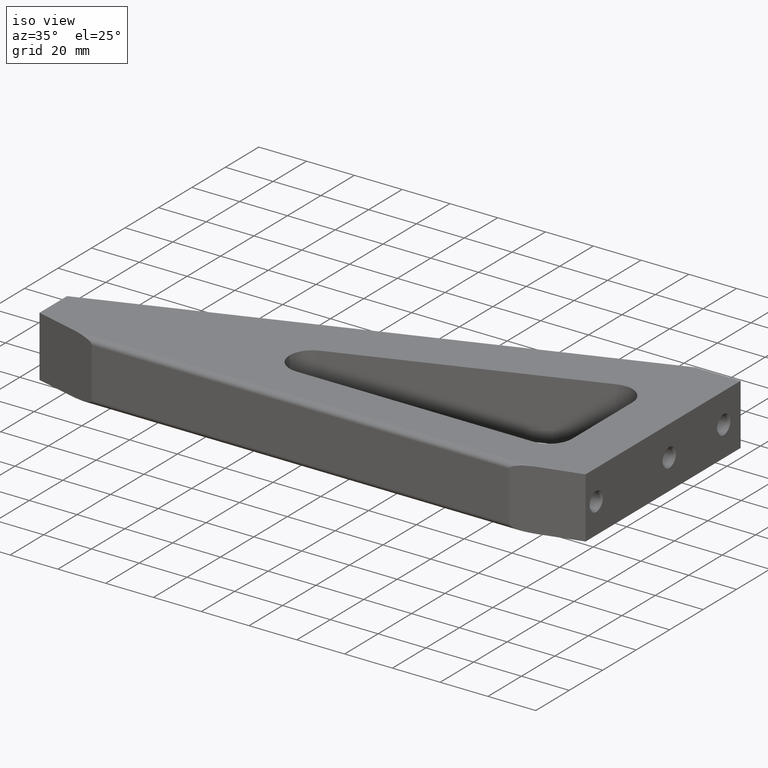
[diagram: clean part render]
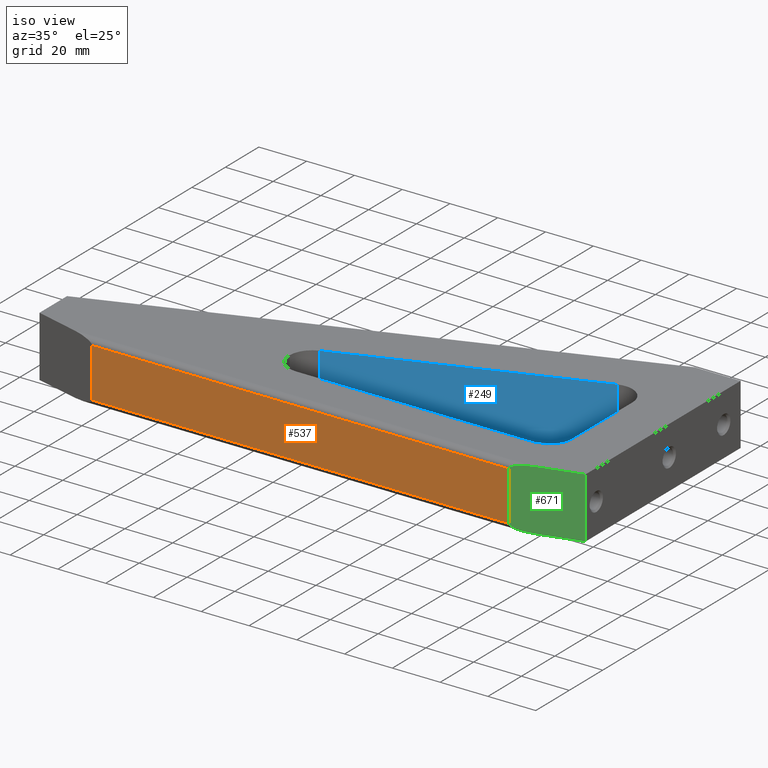
[diagram: same view with three faces highlighted in distinct colors, each labeled with its STEP entity id]
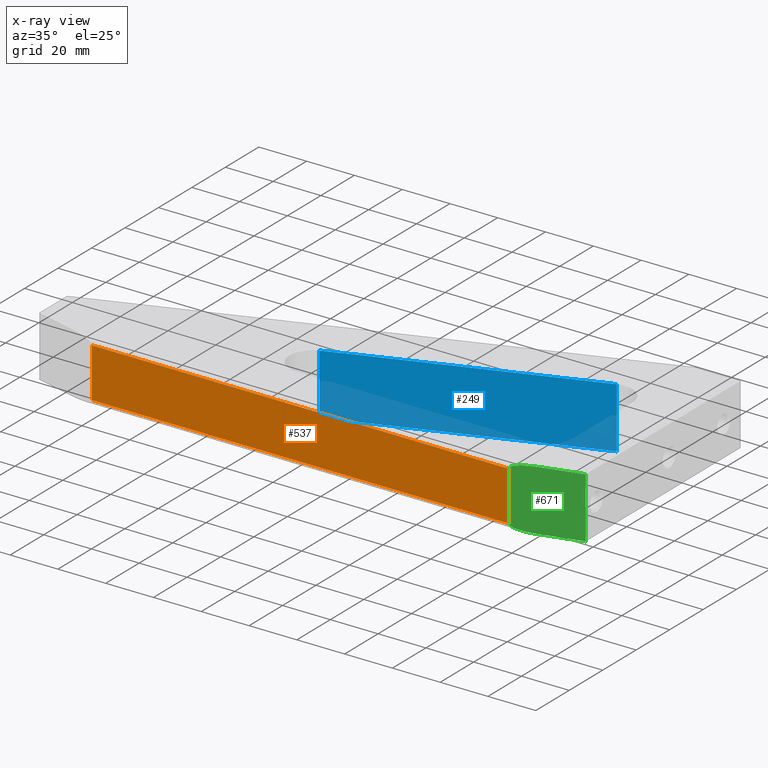
[diagram: x-ray of the same camera — body ghosted, the three highlighted faces saturated]
A machine part, iso view with three faces highlighted in distinct colors.
The next image is the same camera in x-ray (body ghosted, the three faces saturated) — at least one of them is partly hidden behind the body in this view.
Their STEP definitions:

[orange] entity #537 — the highlighted cylindrical surface (partial cylindrical patch) has radius 889 mm, axis along (1, 0, -0).
#23 = EDGE_CURVE ( 'NONE', #452, #909, #222, .T. ) ;
#70 = EDGE_LOOP ( 'NONE', ( #387, #591, #209, #1039 ) ) ;
#140 = VECTOR ( 'NONE', #597, 39.37007874015748100 ) ;
#150 = LINE ( 'NONE', #567, #140 ) ;
#185 = CARTESIAN_POINT ( 'NONE',  ( -7.935882079817655900, -2.037629537364355600, 0.4073410922112933300 ) ) ;
#209 = ORIENTED_EDGE ( 'NONE', *, *, #486, .T. ) ;
#222 =( BOUNDED_CURVE ( )  B_SPLINE_CURVE ( 3, ( #1083, #1078, #1041, #1100 ),
 .UNSPECIFIED., .F., .T. ) 
 B_SPLINE_CURVE_WITH_KNOTS ( ( 4, 4 ),
 ( 6.271546727507427500, 6.294823886851745000 ),
 .UNSPECIFIED. ) 
 CURVE ( )  GEOMETRIC_REPRESENTATION_ITEM ( )  RATIONAL_B_SPLINE_CURVE ( ( 1.000000000000000000, 0.9999548483307491000, 0.9999548483307491000, 1.000000000000000000 ) ) 
 REPRESENTATION_ITEM ( '' )  );
#230 = DIRECTION ( 'NONE',  ( -1.000000000000000000, -2.538966122798555600E-016, 0.0000000000000000000 ) ) ;
#240 =( BOUNDED_CURVE ( )  B_SPLINE_CURVE ( 3, ( #308, #266, #345, #340 ),
 .UNSPECIFIED., .F., .T. ) 
 B_SPLINE_CURVE_WITH_KNOTS ( ( 4, 4 ),
 ( 3.129954073917634800, 3.153231233261951000 ),
 .UNSPECIFIED. ) 
 CURVE ( )  GEOMETRIC_REPRESENTATION_ITEM ( )  RATIONAL_B_SPLINE_CURVE ( ( 1.000000000000000000, 0.9999548483307491000, 0.9999548483307491000, 1.000000000000000000 ) ) 
 REPRESENTATION_ITEM ( '' )  );
#265 = VECTOR ( 'NONE', #230, 39.37007874015748100 ) ;
#266 = CARTESIAN_POINT ( 'NONE',  ( -1.075913635994280700, -2.040790189890305100, -0.1357864950573460800 ) ) ;
#308 = CARTESIAN_POINT ( 'NONE',  ( -1.064117920182349400, -2.037629537364351200, -0.4073410922112734600 ) ) ;
#340 = CARTESIAN_POINT ( 'NONE',  ( -1.064117920182349400, -2.037629537364351200, 0.4073410922112649100 ) ) ;
#345 = CARTESIAN_POINT ( 'NONE',  ( -1.075913635994280000, -2.040790189890305100, 0.1357864950573219600 ) ) ;
#382 = LINE ( 'NONE', #794, #265 ) ;
#387 = ORIENTED_EDGE ( 'NONE', *, *, #23, .T. ) ;
#452 = VERTEX_POINT ( 'NONE', #185 ) ;
#469 = DIRECTION ( 'NONE',  ( -2.497689594207325900E-016, 1.000000000000000000, 0.0000000000000000000 ) ) ;
#486 = EDGE_CURVE ( 'NONE', #900, #1057, #240, .T. ) ;
#497 = CARTESIAN_POINT ( 'NONE',  ( -9.000000000000010700, 32.95999999999999400, 0.0000000000000000000 ) ) ;
#505 = DIRECTION ( 'NONE',  ( 1.000000000000000000, 2.538966122798555600E-016, -0.0000000000000000000 ) ) ;
#533 = CARTESIAN_POINT ( 'NONE',  ( -1.064117920182349400, -2.037629537364351200, -0.4073410922112734600 ) ) ;
#537 = ADVANCED_FACE ( 'NONE', ( #829 ), #623, .T. ) ;
#567 = CARTESIAN_POINT ( 'NONE',  ( -9.000000000000001800, -2.037629537364338300, -0.4073410922112801800 ) ) ;
#591 = ORIENTED_EDGE ( 'NONE', *, *, #1033, .T. ) ;
#597 = DIRECTION ( 'NONE',  ( 1.000000000000000000, 2.538966122798555600E-016, -0.0000000000000000000 ) ) ;
#623 = CYLINDRICAL_SURFACE ( 'NONE', #1107, 35.00000000000000700 ) ;
#625 = CARTESIAN_POINT ( 'NONE',  ( -7.935882079817655900, -2.037629537364355600, -0.4073410922112802300 ) ) ;
#663 = CARTESIAN_POINT ( 'NONE',  ( -1.064117920182349400, -2.037629537364351200, 0.4073410922112649100 ) ) ;
#794 = CARTESIAN_POINT ( 'NONE',  ( -9.000000000000001800, -2.037629537364338300, 0.4073410922112801800 ) ) ;
#829 = FACE_OUTER_BOUND ( 'NONE', #70, .T. ) ;
#900 = VERTEX_POINT ( 'NONE', #533 ) ;
#909 = VERTEX_POINT ( 'NONE', #625 ) ;
#1033 = EDGE_CURVE ( 'NONE', #909, #900, #150, .T. ) ;
#1039 = ORIENTED_EDGE ( 'NONE', *, *, #1087, .T. ) ;
#1041 = CARTESIAN_POINT ( 'NONE',  ( -7.924086364005724200, -2.040790189890310000, -0.1357864950573417800 ) ) ;
#1057 = VERTEX_POINT ( 'NONE', #663 ) ;
#1078 = CARTESIAN_POINT ( 'NONE',  ( -7.924086364005724200, -2.040790189890310000, 0.1357864950573503800 ) ) ;
#1083 = CARTESIAN_POINT ( 'NONE',  ( -7.935882079817655900, -2.037629537364355600, 0.4073410922112933300 ) ) ;
#1087 = EDGE_CURVE ( 'NONE', #1057, #452, #382, .T. ) ;
#1100 = CARTESIAN_POINT ( 'NONE',  ( -7.935882079817655900, -2.037629537364355600, -0.4073410922112802300 ) ) ;
#1107 = AXIS2_PLACEMENT_3D ( 'NONE', #497, #505, #469 ) ;

[blue] entity #249 — the highlighted planar face has unit normal (0.3417, -0.9398, 0).
#52 = VERTEX_POINT ( 'NONE', #1105 ) ;
#64 = ORIENTED_EDGE ( 'NONE', *, *, #1058, .F. ) ;
#83 = EDGE_LOOP ( 'NONE', ( #64, #100, #540, #752 ) ) ;
#86 = VECTOR ( 'NONE', #367, 39.37007874015748100 ) ;
#98 = CARTESIAN_POINT ( 'NONE',  ( -1.303153648657513900, 0.8451023160722044300, 0.5000000000000000000 ) ) ;
#100 = ORIENTED_EDGE ( 'NONE', *, *, #1093, .F. ) ;
#159 = LINE ( 'NONE', #904, #86 ) ;
#171 = EDGE_CURVE ( 'NONE', #1011, #52, #610, .T. ) ;
#179 = CARTESIAN_POINT ( 'NONE',  ( -5.208648049883626300, -0.5750774661918363100, -0.5000000000000000000 ) ) ;
#228 = LINE ( 'NONE', #1031, #559 ) ;
#249 = ADVANCED_FACE ( 'NONE', ( #606 ), #316, .T. ) ;
#290 = CARTESIAN_POINT ( 'NONE',  ( -1.303153648657513900, 0.8451023160722044300, 0.5000000000000000000 ) ) ;
#302 = DIRECTION ( 'NONE',  ( 0.3417430630867043200, -0.9397934234884370900, 0.0000000000000000000 ) ) ;
#316 = PLANE ( 'NONE',  #960 ) ;
#367 = DIRECTION ( 'NONE',  ( -0.0000000000000000000, -0.0000000000000000000, -1.000000000000000000 ) ) ;
#371 = DIRECTION ( 'NONE',  ( -0.9397934234884369700, -0.3417430630867042700, 0.0000000000000000000 ) ) ;
#487 = DIRECTION ( 'NONE',  ( -0.9397934234884369700, -0.3417430630867042700, 0.0000000000000000000 ) ) ;
#540 = ORIENTED_EDGE ( 'NONE', *, *, #171, .T. ) ;
#559 = VECTOR ( 'NONE', #1085, 39.37007874015748100 ) ;
#606 = FACE_OUTER_BOUND ( 'NONE', #83, .T. ) ;
#609 = VECTOR ( 'NONE', #371, 39.37007874015748900 ) ;
#610 = LINE ( 'NONE', #98, #609 ) ;
#673 = DIRECTION ( 'NONE',  ( 0.9397934234884369700, 0.3417430630867042700, 0.0000000000000000000 ) ) ;
#690 = LINE ( 'NONE', #827, #705 ) ;
#705 = VECTOR ( 'NONE', #487, 39.37007874015748900 ) ;
#711 = VERTEX_POINT ( 'NONE', #872 ) ;
#752 = ORIENTED_EDGE ( 'NONE', *, *, #993, .T. ) ;
#827 = CARTESIAN_POINT ( 'NONE',  ( -1.303153648657513900, 0.8451023160722044300, -0.5000000000000000000 ) ) ;
#855 = VERTEX_POINT ( 'NONE', #179 ) ;
#872 = CARTESIAN_POINT ( 'NONE',  ( -1.303153648657513900, 0.8451023160722044300, -0.5000000000000000000 ) ) ;
#904 = CARTESIAN_POINT ( 'NONE',  ( -5.208648049883626300, -0.5750774661918363100, 0.5000000000000000000 ) ) ;
#960 = AXIS2_PLACEMENT_3D ( 'NONE', #290, #302, #673 ) ;
#993 = EDGE_CURVE ( 'NONE', #52, #855, #159, .T. ) ;
#1011 = VERTEX_POINT ( 'NONE', #1015 ) ;
#1015 = CARTESIAN_POINT ( 'NONE',  ( -1.303153648657513900, 0.8451023160722044300, 0.5000000000000000000 ) ) ;
#1031 = CARTESIAN_POINT ( 'NONE',  ( -1.303153648657513900, 0.8451023160722044300, 0.5000000000000000000 ) ) ;
#1058 = EDGE_CURVE ( 'NONE', #711, #855, #690, .T. ) ;
#1085 = DIRECTION ( 'NONE',  ( -0.0000000000000000000, -0.0000000000000000000, -1.000000000000000000 ) ) ;
#1093 = EDGE_CURVE ( 'NONE', #1011, #711, #228, .T. ) ;
#1105 = CARTESIAN_POINT ( 'NONE',  ( -5.208648049883626300, -0.5750774661918363100, 0.5000000000000000000 ) ) ;

[green] entity #671 — the highlighted planar face has unit normal (-0.2588, 0.9659, 0).
#12 = CARTESIAN_POINT ( 'NONE',  ( 4.469960816887839400E-016, -1.752499999999999900, 0.5000000000000000000 ) ) ;
#21 = EDGE_CURVE ( 'NONE', #48, #1057, #1081, .T. ) ;
#28 = EDGE_CURVE ( 'NONE', #937, #605, #29, .T. ) ;
#29 = LINE ( 'NONE', #12, #739 ) ;
#34 = CARTESIAN_POINT ( 'NONE',  ( -1.306217782649102400, -2.102500000000000000, 0.5000000000000000000 ) ) ;
#46 = DIRECTION ( 'NONE',  ( 0.9659258262890679800, 0.2588190451025216300, 0.0000000000000000000 ) ) ;
#48 = VERTEX_POINT ( 'NONE', #823 ) ;
#108 = ORIENTED_EDGE ( 'NONE', *, *, #517, .T. ) ;
#194 = ORIENTED_EDGE ( 'NONE', *, *, #28, .F. ) ;
#240 =( BOUNDED_CURVE ( )  B_SPLINE_CURVE ( 3, ( #308, #266, #345, #340 ),
 .UNSPECIFIED., .F., .T. ) 
 B_SPLINE_CURVE_WITH_KNOTS ( ( 4, 4 ),
 ( 3.129954073917634800, 3.153231233261951000 ),
 .UNSPECIFIED. ) 
 CURVE ( )  GEOMETRIC_REPRESENTATION_ITEM ( )  RATIONAL_B_SPLINE_CURVE ( ( 1.000000000000000000, 0.9999548483307491000, 0.9999548483307491000, 1.000000000000000000 ) ) 
 REPRESENTATION_ITEM ( '' )  );
#258 = ORIENTED_EDGE ( 'NONE', *, *, #710, .T. ) ;
#266 = CARTESIAN_POINT ( 'NONE',  ( -1.075913635994280700, -2.040790189890305100, -0.1357864950573460800 ) ) ;
#271 = ORIENTED_EDGE ( 'NONE', *, *, #334, .F. ) ;
#274 = ORIENTED_EDGE ( 'NONE', *, *, #21, .T. ) ;
#308 = CARTESIAN_POINT ( 'NONE',  ( -1.064117920182349400, -2.037629537364351200, -0.4073410922112734600 ) ) ;
#334 = EDGE_CURVE ( 'NONE', #48, #937, #595, .T. ) ;
#340 = CARTESIAN_POINT ( 'NONE',  ( -1.064117920182349400, -2.037629537364351200, 0.4073410922112649100 ) ) ;
#345 = CARTESIAN_POINT ( 'NONE',  ( -1.075913635994280000, -2.040790189890305100, 0.1357864950573219600 ) ) ;
#427 = CARTESIAN_POINT ( 'NONE',  ( -1.061754545193816200, -2.036996272944757700, -0.4617494344567626400 ) ) ;
#429 = CARTESIAN_POINT ( 'NONE',  ( -1.064117920182349400, -2.037629537364351200, -0.4073410922112734600 ) ) ;
#440 = CARTESIAN_POINT ( 'NONE',  ( -0.9173303043907997700, -1.998297914254111500, -0.4999999999999998900 ) ) ;
#444 =( BOUNDED_CURVE ( )  B_SPLINE_CURVE ( 3, ( #429, #427, #440, #446 ),
 .UNSPECIFIED., .F., .T. ) 
 B_SPLINE_CURVE_WITH_KNOTS ( ( 4, 4 ),
 ( 3.153231233261878200, 4.712388980384688800 ),
 .UNSPECIFIED. ) 
 CURVE ( )  GEOMETRIC_REPRESENTATION_ITEM ( )  RATIONAL_B_SPLINE_CURVE ( ( 1.000000000000000000, 0.8074730963475383900, 0.8074730963475383900, 1.000000000000000000 ) ) 
 REPRESENTATION_ITEM ( '' )  );
#446 = CARTESIAN_POINT ( 'NONE',  ( -0.7142618534557397800, -1.943885886817823000, -0.5000000000000000000 ) ) ;
#486 = EDGE_CURVE ( 'NONE', #900, #1057, #240, .T. ) ;
#517 = EDGE_CURVE ( 'NONE', #900, #1037, #444, .T. ) ;
#533 = CARTESIAN_POINT ( 'NONE',  ( -1.064117920182349400, -2.037629537364351200, -0.4073410922112734600 ) ) ;
#551 = LINE ( 'NONE', #859, #844 ) ;
#562 = FACE_OUTER_BOUND ( 'NONE', #617, .T. ) ;
#595 = LINE ( 'NONE', #34, #787 ) ;
#605 = VERTEX_POINT ( 'NONE', #728 ) ;
#617 = EDGE_LOOP ( 'NONE', ( #925, #108, #258, #194, #271, #274 ) ) ;
#663 = CARTESIAN_POINT ( 'NONE',  ( -1.064117920182349400, -2.037629537364351200, 0.4073410922112649100 ) ) ;
#671 = ADVANCED_FACE ( 'NONE', ( #562 ), #764, .F. ) ;
#688 = CARTESIAN_POINT ( 'NONE',  ( 4.469960816887839400E-016, -1.752499999999999900, 0.5000000000000000000 ) ) ;
#706 = CARTESIAN_POINT ( 'NONE',  ( -0.7142618534557402300, -1.943885886817823300, 0.5000000000000000000 ) ) ;
#710 = EDGE_CURVE ( 'NONE', #1037, #605, #551, .T. ) ;
#728 = CARTESIAN_POINT ( 'NONE',  ( 4.469960816887839400E-016, -1.752499999999999900, -0.5000000000000000000 ) ) ;
#739 = VECTOR ( 'NONE', #1042, 39.37007874015748100 ) ;
#764 = PLANE ( 'NONE',  #814 ) ;
#783 = CARTESIAN_POINT ( 'NONE',  ( -1.306217782649102400, -2.102500000000000000, 0.5000000000000000000 ) ) ;
#787 = VECTOR ( 'NONE', #46, 39.37007874015748900 ) ;
#805 = DIRECTION ( 'NONE',  ( -0.2588190451025216800, 0.9659258262890680900, 0.0000000000000000000 ) ) ;
#812 = DIRECTION ( 'NONE',  ( -0.9659258262890679800, -0.2588190451025216300, 0.0000000000000000000 ) ) ;
#814 = AXIS2_PLACEMENT_3D ( 'NONE', #783, #805, #812 ) ;
#823 = CARTESIAN_POINT ( 'NONE',  ( -0.7142618534557402300, -1.943885886817823300, 0.5000000000000000000 ) ) ;
#844 = VECTOR ( 'NONE', #880, 39.37007874015748900 ) ;
#859 = CARTESIAN_POINT ( 'NONE',  ( -1.306217782649102400, -2.102500000000000000, -0.5000000000000000000 ) ) ;
#880 = DIRECTION ( 'NONE',  ( 0.9659258262890679800, 0.2588190451025216300, 0.0000000000000000000 ) ) ;
#900 = VERTEX_POINT ( 'NONE', #533 ) ;
#925 = ORIENTED_EDGE ( 'NONE', *, *, #486, .F. ) ;
#937 = VERTEX_POINT ( 'NONE', #688 ) ;
#1037 = VERTEX_POINT ( 'NONE', #1082 ) ;
#1042 = DIRECTION ( 'NONE',  ( -0.0000000000000000000, -0.0000000000000000000, -1.000000000000000000 ) ) ;
#1048 = CARTESIAN_POINT ( 'NONE',  ( -0.9173303043908146400, -1.998297914254116200, 0.4999999999999998900 ) ) ;
#1052 = CARTESIAN_POINT ( 'NONE',  ( -1.061754545193834800, -2.036996272944763500, 0.4617494344567580900 ) ) ;
#1056 = CARTESIAN_POINT ( 'NONE',  ( -1.064117920182349400, -2.037629537364351200, 0.4073410922112649100 ) ) ;
#1057 = VERTEX_POINT ( 'NONE', #663 ) ;
#1081 =( BOUNDED_CURVE ( )  B_SPLINE_CURVE ( 3, ( #706, #1048, #1052, #1056 ),
 .UNSPECIFIED., .F., .T. ) 
 B_SPLINE_CURVE_WITH_KNOTS ( ( 4, 4 ),
 ( 1.570796326794898600, 3.129954073917799100 ),
 .UNSPECIFIED. ) 
 CURVE ( )  GEOMETRIC_REPRESENTATION_ITEM ( )  RATIONAL_B_SPLINE_CURVE ( ( 1.000000000000000000, 0.8074730963475174100, 0.8074730963475174100, 1.000000000000000000 ) ) 
 REPRESENTATION_ITEM ( '' )  );
#1082 = CARTESIAN_POINT ( 'NONE',  ( -0.7142618534557397800, -1.943885886817823000, -0.5000000000000000000 ) ) ;